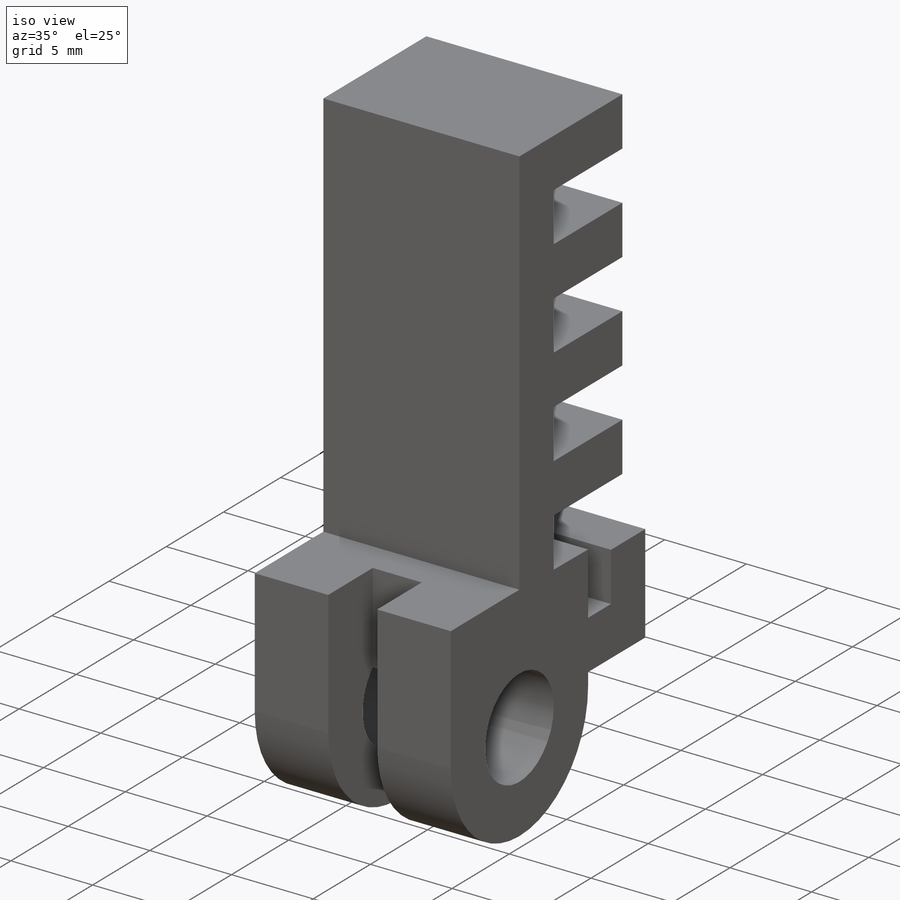
[diagram: iso view]
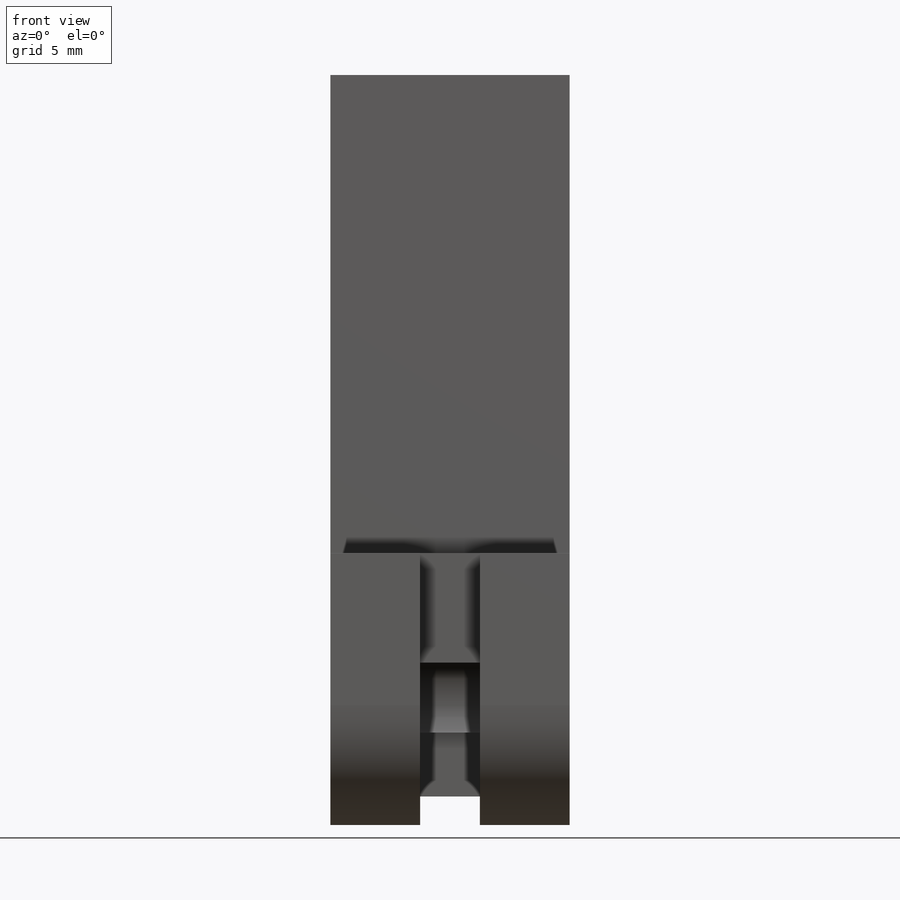
[diagram: front view]
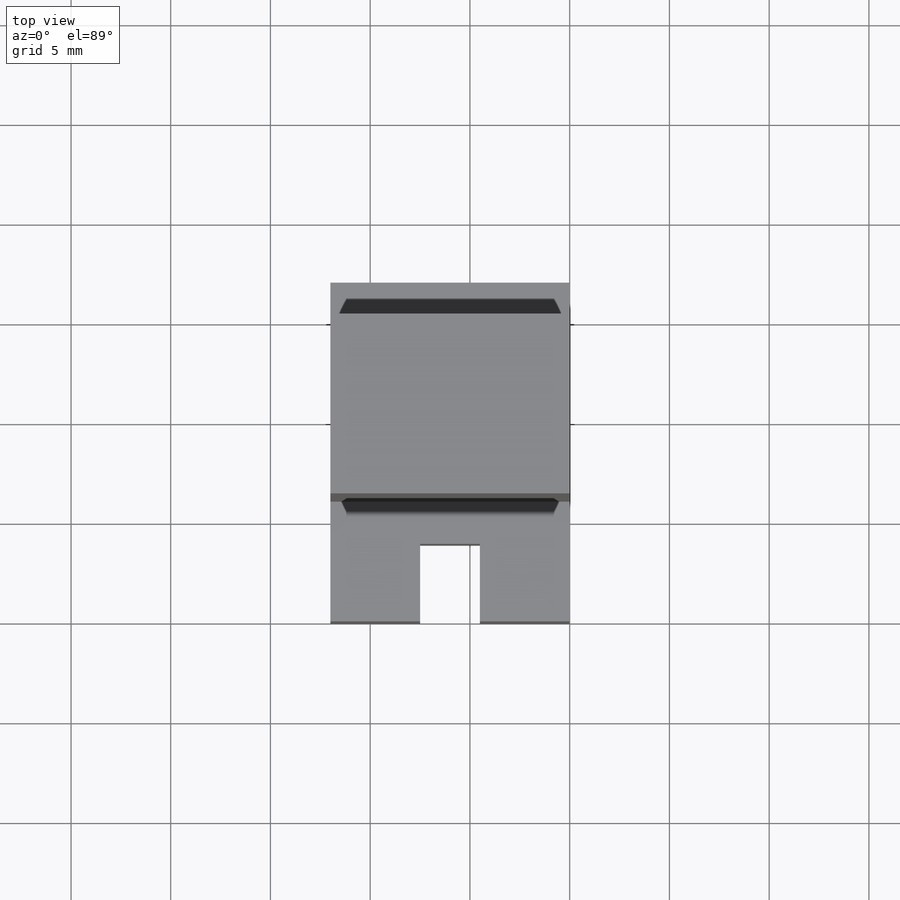
[diagram: top view]
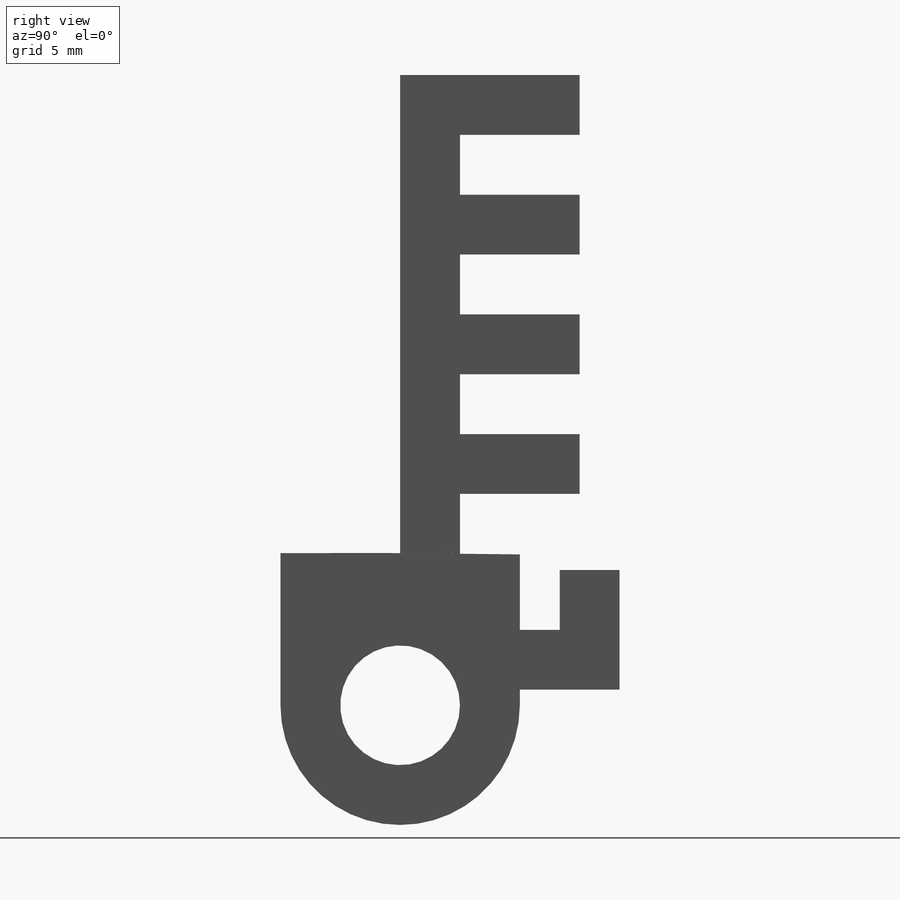
[diagram: right view]
SOLIDWORKS PART (.sldprt)
format: sldprt  version: not decoded by parser v0  size: 213,504 bytes
history: native  units: mm
features: sketch x4, extrude x3, material x1, cut_extrude x1 (+13 scaffold rows collapsed)
feature tree (22):
  scaffold x13  (default folders/planes/origin — collapsed)
  material  "Material <not specified>"
  sketch  "Sketch3"  dims[D1=2.0mm]
  sketch  "Sketch4"  dims[D1=6.0mm]
  extrude  "Boss-Extrude2"  Depth=12mm
  sketch  "Sketch5"  dims[D1=3.0mm]
  extrude  "Boss-Extrude3"  Depth=12mm
  cut_extrude  "Cut-Extrude1"  Depth=3mm
  sketch  "Sketch7"  dims[D1=6.0mm]
  extrude  "Boss-Extrude4"  Depth=12mm
decode coverage: 8 of 8 modeling features carry decoded parameters
note: suppression state not decoded; provenance and decode notes live in map.json
